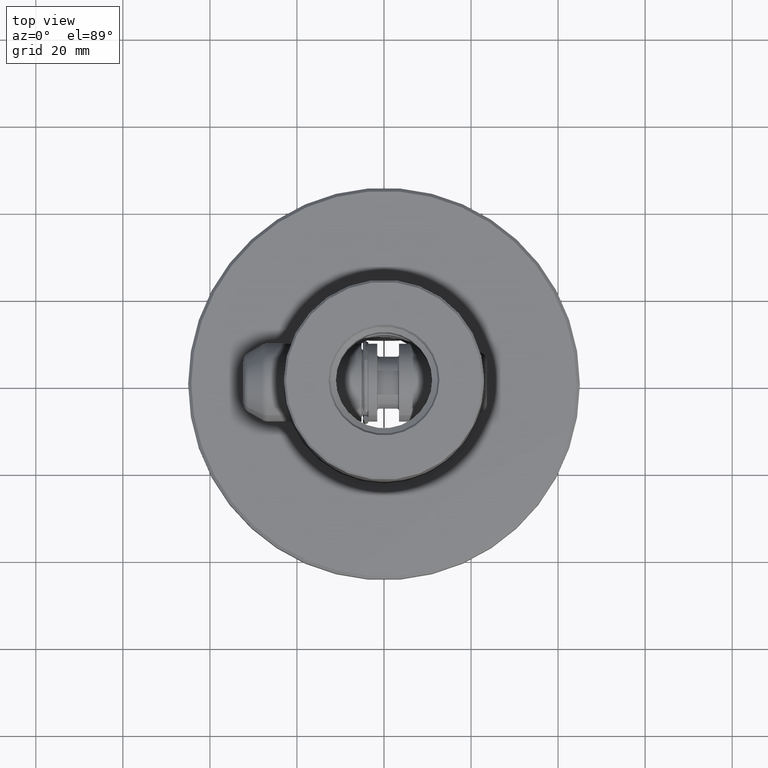
[diagram: clean part render]
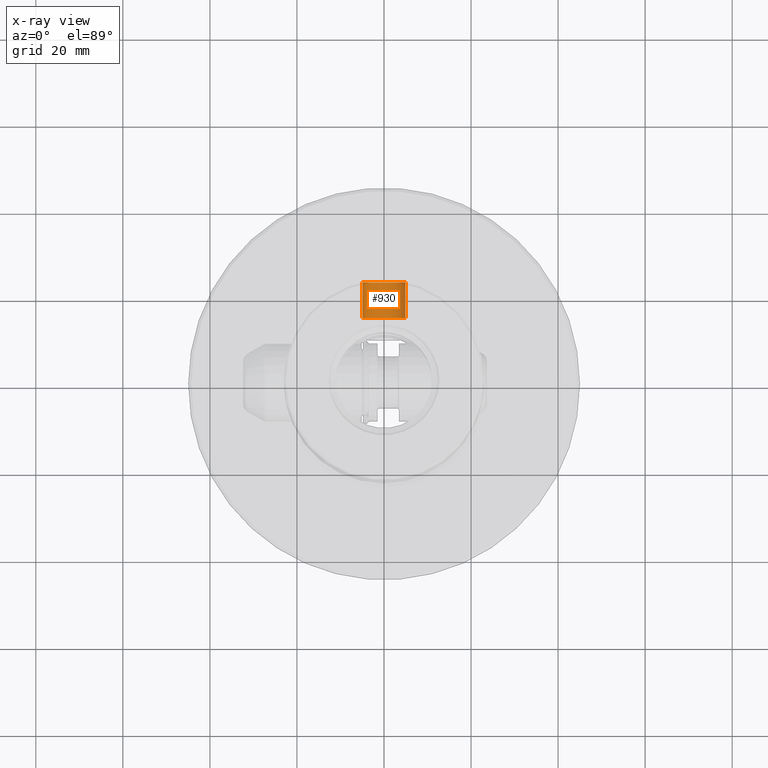
[diagram: x-ray — body ghosted, one internal face saturated and labeled with its STEP entity id]
A machine part, top view, then the same camera in x-ray: the body is ghosted and one INTERNAL B-rep face — a face not visible from any outside direction — is saturated and labeled: STEP entity #930.
In plain terms, the highlighted cylindrical surface (edge-blend (fillet) strip) has radius 5 mm, axis along (0, 1, 0).
Its self-contained STEP definition (entity closure, byte-faithful):
#818=EDGE_CURVE('NONE',#1026,#1312,#2377,.T.);
#858=EDGE_CURVE('NONE',#1650,#1620,#2420,.T.);
#930=ADVANCED_FACE('NONE',(#2497),#2498,.T.);
#1026=VERTEX_POINT('NONE',#2608);
#1312=VERTEX_POINT('NONE',#2921);
#1324=EDGE_CURVE('NONE',#1650,#1026,#2933,.T.);
#1620=VERTEX_POINT('NONE',#3271);
#1650=VERTEX_POINT('NONE',#3304);
#1862=EDGE_CURVE('NONE',#1312,#1620,#3550,.T.);
#2377=LINE('',#4115,#4116);
#2420=LINE('',#4172,#4173);
#2497=FACE_OUTER_BOUND('',#4346,.T.);
#2498=CYLINDRICAL_SURFACE('',#4347,5.0);
#2608=CARTESIAN_POINT('',(-4.91762333562785,15.9255782218217,-46.0461301371944));
#2921=CARTESIAN_POINT('',(-4.91762333562784,24.1007070912253,-46.0461301371944));
#2933=CIRCLE('',#5095,5.0);
#3271=CARTESIAN_POINT('',(4.9176233356279,24.1007070912253,-47.8538698628056));
#3304=CARTESIAN_POINT('',(4.91762333562789,15.9255782218217,-47.8538698628056));
#3550=CIRCLE('',#6156,5.0);
#4115=CARTESIAN_POINT('',(-4.91762333562784,24.7007070912253,-46.0461301371944));
#4116=VECTOR('',#7221,1000.0);
#4172=CARTESIAN_POINT('',(4.9176233356279,24.7007070912253,-47.8538698628056));
#4173=VECTOR('',#7273,1000.0);
#4346=EDGE_LOOP('',(#7344,#7345,#7346,#7347));
#4347=AXIS2_PLACEMENT_3D('',#7348,#7349,#7350);
#5095=AXIS2_PLACEMENT_3D('',#7875,#7876,#7877);
#6156=AXIS2_PLACEMENT_3D('',#8707,#8708,#8709);
#7221=DIRECTION('',(1.11022302462516E-015,1.0,1.46305923351253E-016));
#7273=DIRECTION('',(1.11022302462516E-015,1.0,1.46305923351253E-016));
#7344=ORIENTED_EDGE('',*,*,#1324,.T.);
#7345=ORIENTED_EDGE('',*,*,#818,.T.);
#7346=ORIENTED_EDGE('',*,*,#1862,.T.);
#7347=ORIENTED_EDGE('',*,*,#858,.F.);
#7348=CARTESIAN_POINT('',(2.94902990916057E-014,24.7007070912253,-46.95));
#7349=DIRECTION('',(1.11022302462516E-015,1.0,1.46305923351253E-016));
#7350=DIRECTION('',(0.983524667125574,-1.06548342775618E-015,-0.180773972561121));
#7875=CARTESIAN_POINT('',(1.97479489767409E-014,15.9255782218217,-46.95));
#7876=DIRECTION('',(1.11022302462516E-015,1.0,1.46305923351253E-016));
#7877=DIRECTION('',(0.983524667125574,-1.06548342775618E-015,-0.180773972561121));
#8707=CARTESIAN_POINT('',(2.88241652768306E-014,24.1007070912253,-46.95));
#8708=DIRECTION('',(-1.11022302462516E-015,-1.0,-1.46305923351253E-016));
#8709=DIRECTION('',(-0.983524667125574,1.06548342775618E-015,0.180773972561121));